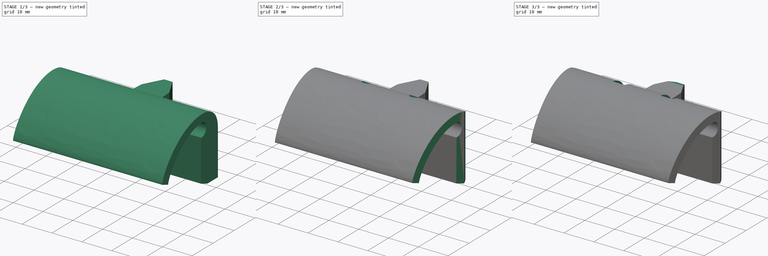
[diagram: build sequence overview — one tinted view per stage of 3, left to right]
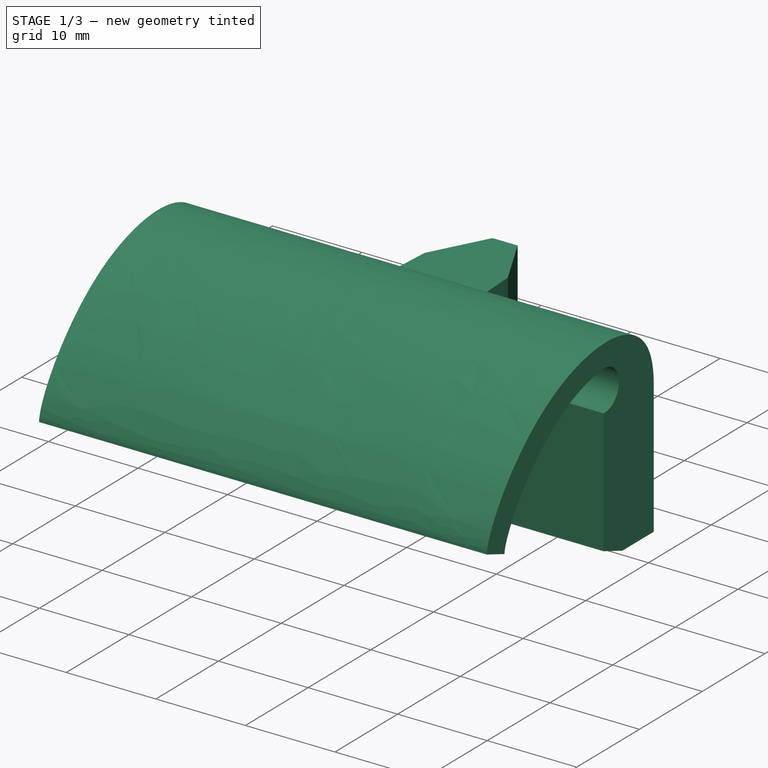
[diagram: stage 1 of 3 — iso view after this stage's code; geometry added in this stage tinted green]
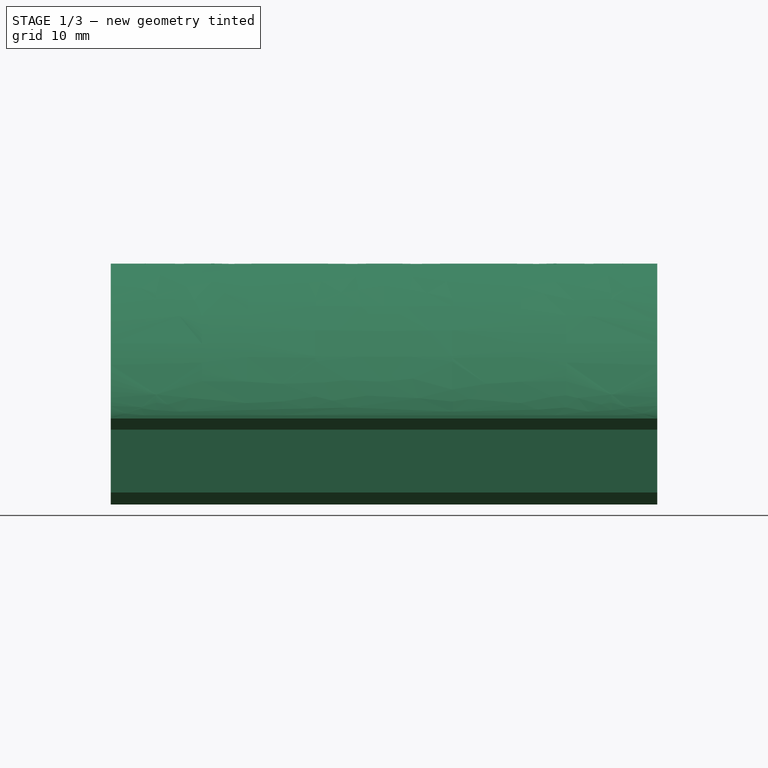
[diagram: stage 1 of 3 — front view after this stage's code; geometry added in this stage tinted green]
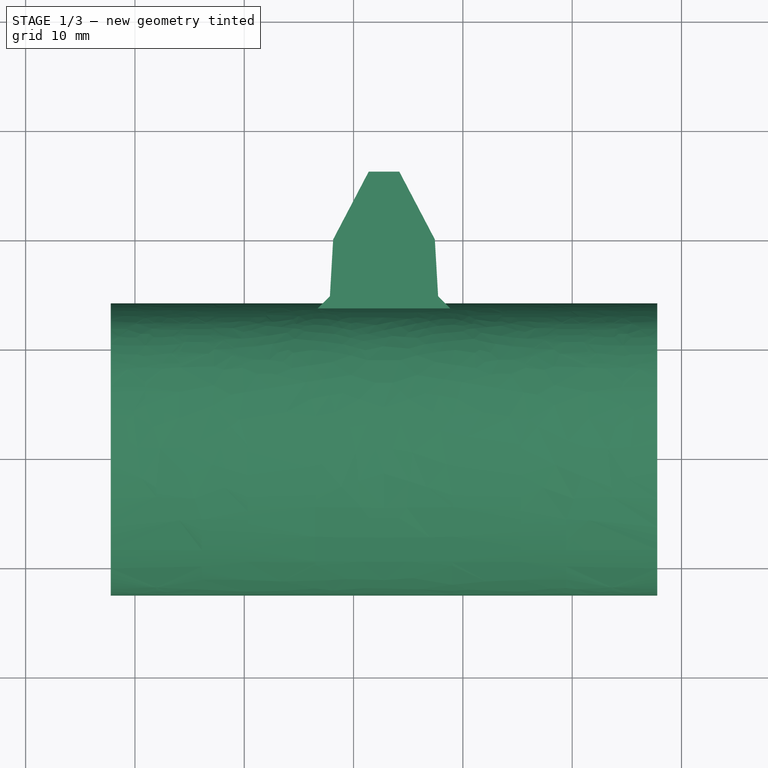
[diagram: stage 1 of 3 — top view after this stage's code; geometry added in this stage tinted green]
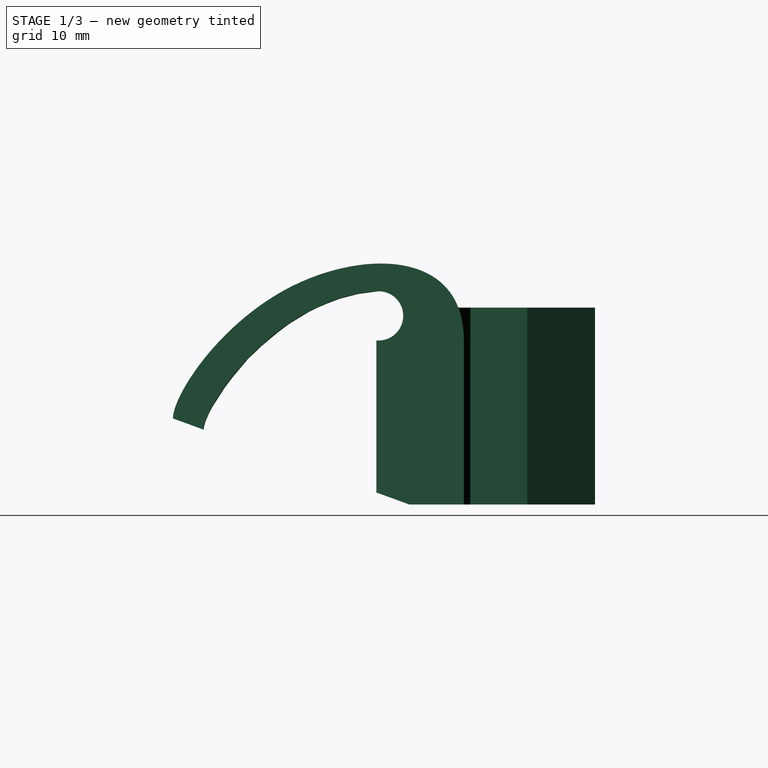
[diagram: stage 1 of 3 — right view after this stage's code; geometry added in this stage tinted green]
FCSTD DOCUMENT  (FreeCAD 0.19R)
Label: stollen_n10
License: All rights reserved
LicenseURL: http://en.wikipedia.org/wiki/All_rights_reserved
objects: Sketcher::SketchObject×5, PartDesign::Pocket×3, PartDesign::Pad×2, PartDesign::Body×1
note: 16 computed .brp shape members not serialized (recipe doc carries the construction recipe); baked Part::Feature solids carry a one-line shape summary decoded from their .brp

FEATURE [Sketcher::SketchObject] Sketch006  label="profile"
  MapMode = 5
  Placement = pos=(32.7848,3.36022e-06,0) rot=(0.57735,0.57735,0.57735;2.0944rad)
  sketch-geometry (26):
    g0: LineSegment StartX=-22.6129 StartY=7.86646 StartZ=0 EndX=-19.7939 EndY=6.8404 EndZ=0
    g1-g5: Circle [constr] x5 (B-spline internal-alignment scaffolding for g6; pole/knot coordinates omitted)
    g6: BSplineCurve PolesCount=5 KnotsCount=3 Degree=3 IsPeriodic=0
    g7: GeomPoint [constr] X=4 Y=15 Z=0
    g8: GeomPoint [constr] X=-11.6532 Y=19.9999 Z=0
    g9: GeomPoint [constr] X=-22.6129 Y=7.86646 Z=0
    g10-g13: Circle [constr] x4 (B-spline internal-alignment scaffolding for g14; pole/knot coordinates omitted)
    g14: BSplineCurve PolesCount=4 KnotsCount=2 Degree=3 IsPeriodic=0
    g15: GeomPoint [constr] X=-3.8 Y=19.5 Z=0
    g16: GeomPoint [constr] X=-19.7939 Y=6.8404 Z=0
    g17: LineSegment StartX=-3.8 StartY=15 StartZ=0 EndX=-4 EndY=15 EndZ=0
    g18: LineSegment StartX=-4 StartY=15 StartZ=0 EndX=-4 EndY=1.09191 EndZ=0
    g19: LineSegment StartX=4 StartY=0 StartZ=0 EndX=4 EndY=15 EndZ=0
    g20: ArcOfCircle CenterX=-3.8 CenterY=17.25 CenterZ=0 NormalX=0 NormalY=0 NormalZ=1 AngleXU=0 Radius=2.25 StartAngle=4.71239 EndAngle=7.85398
    g21: LineSegment StartX=4 StartY=0 StartZ=0 EndX=-1 EndY=0 EndZ=0
    g22: LineSegment StartX=-1 StartY=0 StartZ=0 EndX=-4 EndY=1.09191 EndZ=0
    g23: LineSegment [constr] StartX=-1 StartY=0 StartZ=0 EndX=-22.6129 EndY=7.86646 EndZ=0
    g24: LineSegment [constr] StartX=-22.6129 StartY=10 StartZ=0 EndX=-22.6129 EndY=7.86646 EndZ=0
    g25: LineSegment [constr] StartX=-19.7939 StartY=6.8404 StartZ=0 EndX=-19.7939 EndY=8.97394 EndZ=0
  constraints (48):
    c: Radius(g1) = 0.9
    c: Equal(g1, g2-g5) x4
    c: Coincident(g6,g0)
    c: InternalAlignment(g1-g5 -> g6) x5
    c: InternalAlignment(g7,g6)
    c: InternalAlignment(g8,g6)
    c: InternalAlignment(g9,g6)
    c: Radius(g10) = 1
    c: Equal(g10,g11)
    c: Equal(g10,g12)
    c: Equal(g10,g13)
    c: Coincident(g14,g0)
    c: InternalAlignment(g10-g13 -> g14) x4
    c: InternalAlignment(g15,g14)
    c: InternalAlignment(g16,g14)
    c: Horizontal(g17)
    c: Coincident(g17,g18)
    c: Coincident(g19,g6)
    c: Vertical(g19)
    c: Coincident(g20,g14)
    c: Coincident(g19,g21)
    c: PointOnObject(g21,g-1)
    c: Horizontal(g21)
    c: Coincident(g21,g22)
    c: Coincident(g22,g18)
    c: Coincident(g23,g21)
    c: Coincident(g23,g0)
    c: PointOnObject(g0,g23)
    c: PointOnObject(g18,g23)
    c: Angle(g23) = 2.79253
    c: DistanceX(g18,g19) = 8
    c: Angle(g20) = 3.14159
    c: Diameter(g20) = 4.5
    c: DistanceY(g19,g19) = 15
    c: Vertical(g18)
    c: DistanceX(g21,g21) = 5
    c: Distance(g23) = 23
    c: DistanceX(g17,g17) = 0.2
    c: Tangent(g20,g17) = 1.5708
    c: Symmetric(g6,g17,g-2)
    c: Distance(g0) = 3
    c: Coincident(g24,g4)
    c: Coincident(g24,g0)
    c: Vertical(g24)
    c: Coincident(g25,g0)
    c: Coincident(g25,g12)
    c: Vertical(g25)
    c: Equal(g24,g25)
FEATURE [PartDesign::Pad] Pad
  Length = 50
  Length2 = 100
  Midplane = true
  Placement = pos=(32.7848,3.36022e-06,0) rot=(0.57735,0.57735,0.57735;2.0944rad)
  Profile = -> Sketch006
  Reversed = true
  Type = 0
FEATURE [Sketcher::SketchObject] Sketch008  label="nose"
  ExternalGeometry = -> [Pad]
  MapMode = 5
  Placement = pos=(32.7848,3.36022e-06,0) rot=(0.707107,0.707107,0;3.14159rad)
  Support = -> [Pad]
  sketch-geometry (8):
    g0: LineSegment StartX=3.05 StartY=6.5 StartZ=0 EndX=3.05 EndY=-6.5 EndZ=0
    g1: LineSegment StartX=3.05 StartY=-6.5 StartZ=0 EndX=4.6 EndY=-4.95 EndZ=0
    g2: LineSegment StartX=4.6 StartY=-4.95 StartZ=0 EndX=9.8 EndY=-4.65 EndZ=0
    g3: LineSegment StartX=9.8 StartY=-4.65 StartZ=0 EndX=16 EndY=-1.4 EndZ=0
    g4: LineSegment StartX=16 StartY=-1.4 StartZ=0 EndX=16 EndY=1.4 EndZ=0
    g5: LineSegment StartX=16 StartY=1.4 StartZ=0 EndX=9.8 EndY=4.65 EndZ=0
    g6: LineSegment StartX=9.8 StartY=4.65 StartZ=0 EndX=4.6 EndY=4.95 EndZ=0
    g7: LineSegment StartX=4.6 StartY=4.95 StartZ=0 EndX=3.05 EndY=6.5 EndZ=0
  constraints (20):
    c: Coincident(g0,g1)
    c: Coincident(g1,g2)
    c: Coincident(g2,g3)
    c: Coincident(g3,g4)
    c: Coincident(g4,g5)
    c: Coincident(g5,g6)
    c: Coincident(g6,g7)
    c: Coincident(g7,g0)
    c: DistanceY(g0,g0) = 13
    c: DistanceY(g1,g6) = 9.9
    c: DistanceY(g2,g5) = 9.3
    c: DistanceY(g4,g4) = 2.8
    c: DistanceX(g0,g1) = 1.55
    c: DistanceX(g1,g2) = 5.2
    c: DistanceX(g2,g3) = 6.2
    c: Symmetric(g0,g0,g-1)
    c: Symmetric(g6,g1,g-1)
    c: Symmetric(g2,g5,g-1)
    c: Symmetric(g3,g4,g-1)
    c: DistanceX(g-3,g1) = 0.6
FEATURE [PartDesign::Pad] Pad001
  BaseFeature = -> Pad
  Length = 18
  Length2 = 100
  Placement = pos=(32.7848,3.36022e-06,0) rot=(0.57735,0.57735,0.57735;2.0944rad)
  Profile = -> Sketch008
  Reversed = true
  Type = 0
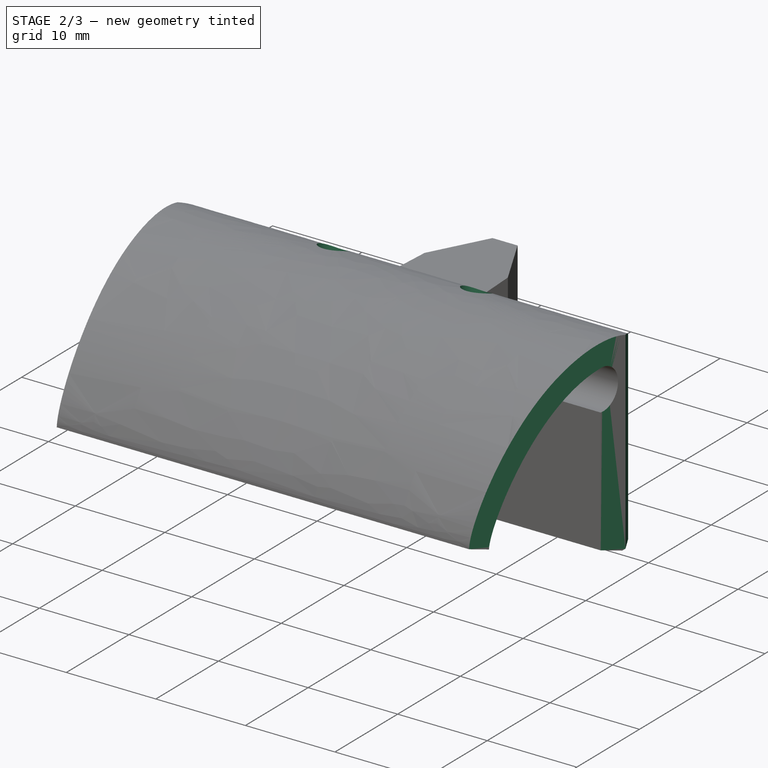
[diagram: stage 2 of 3 — iso view after this stage's code; geometry added in this stage tinted green]
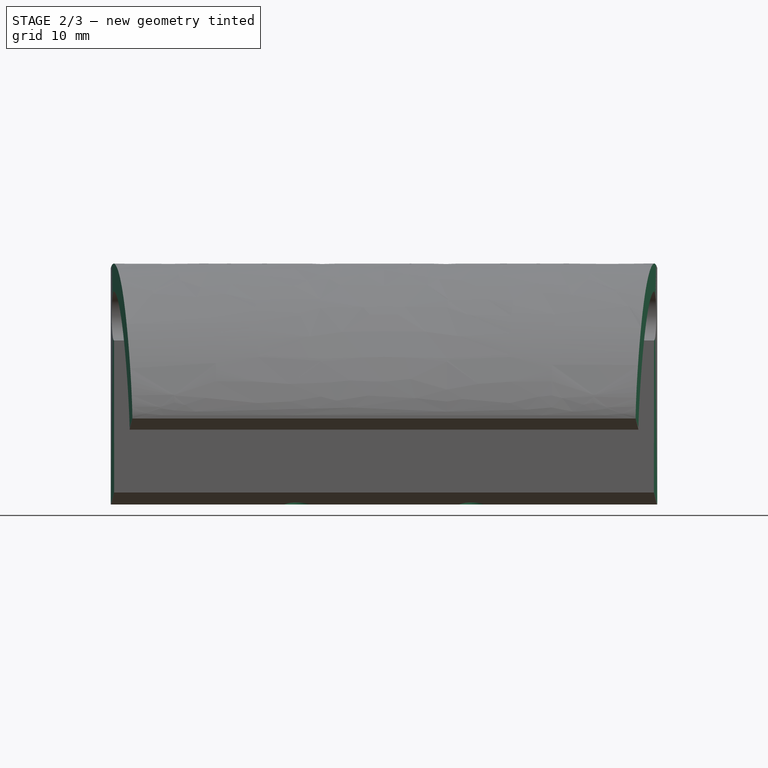
[diagram: stage 2 of 3 — front view after this stage's code; geometry added in this stage tinted green]
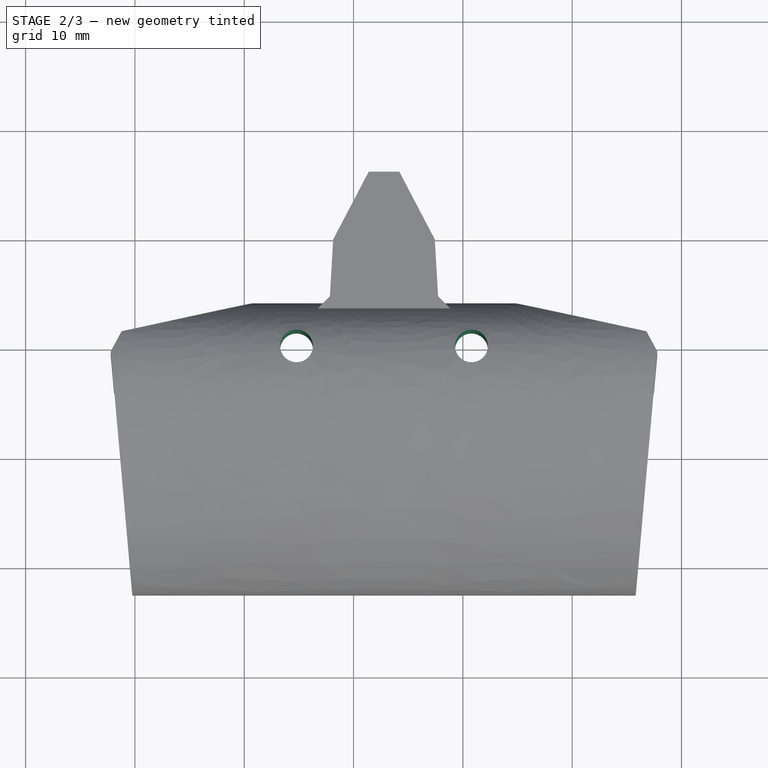
[diagram: stage 2 of 3 — top view after this stage's code; geometry added in this stage tinted green]
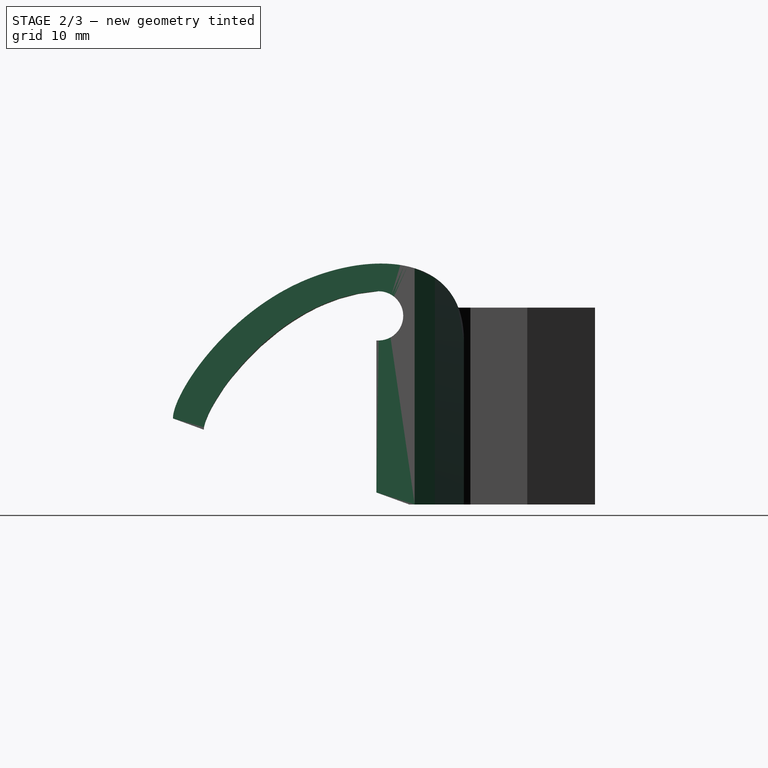
[diagram: stage 2 of 3 — right view after this stage's code; geometry added in this stage tinted green]
FEATURE [Sketcher::SketchObject] Sketch009  label="holes and top contour"
  ExternalGeometry = -> [Pad001]
  MapMode = 5
  Placement = pos=(32.7848,3.36022e-06,5.6e-15) rot=(0.707107,0.707107,0;3.14159rad)
  Support = -> [Pad001]
  sketch-geometry (14):
    g0: Circle CenterX=0 CenterY=-8 CenterZ=0 NormalX=0 NormalY=0 NormalZ=1 AngleXU=0 Radius=1.5
    g1: Circle CenterX=0 CenterY=8 CenterZ=0 NormalX=0 NormalY=0 NormalZ=1 AngleXU=0 Radius=1.5
    g2: LineSegment StartX=-34 StartY=-26 StartZ=0 EndX=4 EndY=-26 EndZ=0
    g3: LineSegment StartX=4 StartY=-26 StartZ=0 EndX=4 EndY=-12 EndZ=0
    g4: LineSegment StartX=-34 StartY=26 StartZ=0 EndX=4 EndY=26 EndZ=0
    g5: LineSegment StartX=4 StartY=26 StartZ=0 EndX=4 EndY=12 EndZ=0
    g6: LineSegment StartX=4 StartY=-12 StartZ=0 EndX=1.35 EndY=-24 EndZ=0
    g7: LineSegment StartX=1.35 StartY=24 StartZ=0 EndX=4 EndY=12 EndZ=0
    g8: LineSegment StartX=1.35 StartY=-24 StartZ=0 EndX=-0.5 EndY=-25 EndZ=0
    g9: LineSegment StartX=-0.5 StartY=-25 StartZ=0 EndX=-34 EndY=-22 EndZ=0
    g10: LineSegment StartX=-34 StartY=-22 StartZ=0 EndX=-34 EndY=-26 EndZ=0
    g11: LineSegment StartX=-34 StartY=26 StartZ=0 EndX=-34 EndY=22 EndZ=0
    g12: LineSegment StartX=-34 StartY=22 StartZ=0 EndX=-0.5 EndY=25 EndZ=0
    g13: LineSegment StartX=-0.5 StartY=25 StartZ=0 EndX=1.35 EndY=24 EndZ=0
  constraints (35):
    c: Diameter(g0) = 3
    c: Equal(g0,g1) = 3
    c: Symmetric(g1,g0,g-1)
    c: DistanceY(g0,g1) = 16
    c: Horizontal(g2)
    c: Coincident(g2,g3)
    c: Vertical(g3)
    c: Coincident(g4,g5)
    c: Vertical(g5)
    c: Horizontal(g4)
    c: Symmetric(g5,g3,g-1)
    c: Symmetric(g2,g4,g-1)
    c: DistanceY(g3) = -12
    c: DistanceY(g2) = -26
    c: Coincident(g3,g6)
    c: Coincident(g7,g5)
    c: Symmetric(g7,g6,g-1)
    c: DistanceY(g6) = -24
    c: Coincident(g6,g8)
    c: Coincident(g8,g9)
    c: Coincident(g9,g10)
    c: Vertical(g10)
    c: Coincident(g2,g10)
    c: DistanceY(g8) = -25
    c: Coincident(g4,g11)
    c: Coincident(g11,g12)
    c: Coincident(g12,g13)
    c: Coincident(g13,g7)
    c: Symmetric(g8,g12,g-1)
    c: Symmetric(g9,g11,g-1)
    c: DistanceY(g9,g11) = 44
    c: DistanceX(g6,g2) = 2.65
    c: DistanceX(g8,g2) = 4.5
    c: PointOnObject(g3,g-3)
    c: PointOnObject(g0,g-2)
FEATURE [PartDesign::Pocket] Pocket
  BaseFeature = -> Pad001
  Length = 5
  Length2 = 100
  Placement = pos=(32.7848,3.36022e-06,0) rot=(0.57735,0.57735,0.57735;2.0944rad)
  Profile = -> Sketch009
  Type = 1
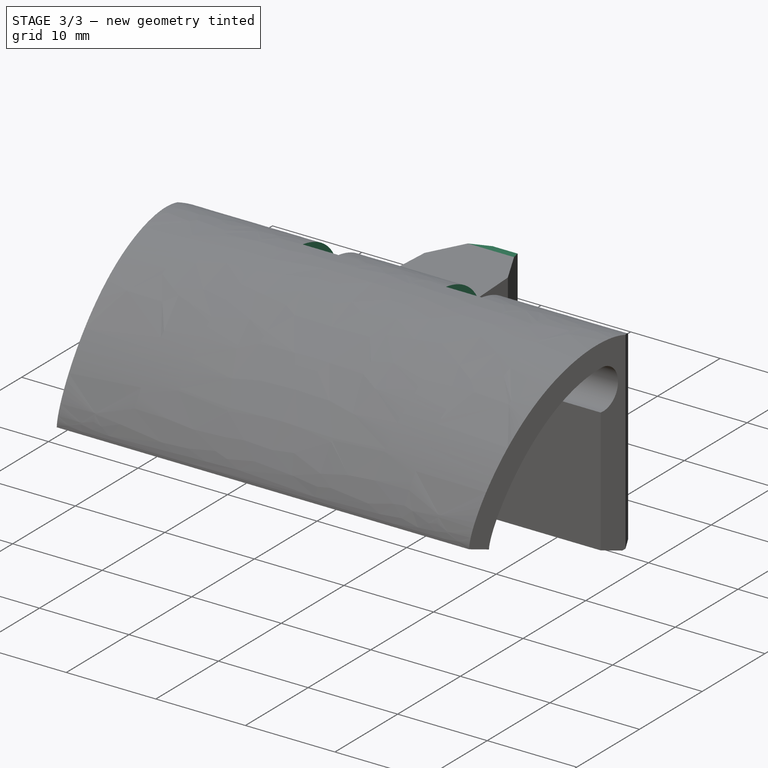
[diagram: stage 3 of 3 — iso view after this stage's code; geometry added in this stage tinted green]
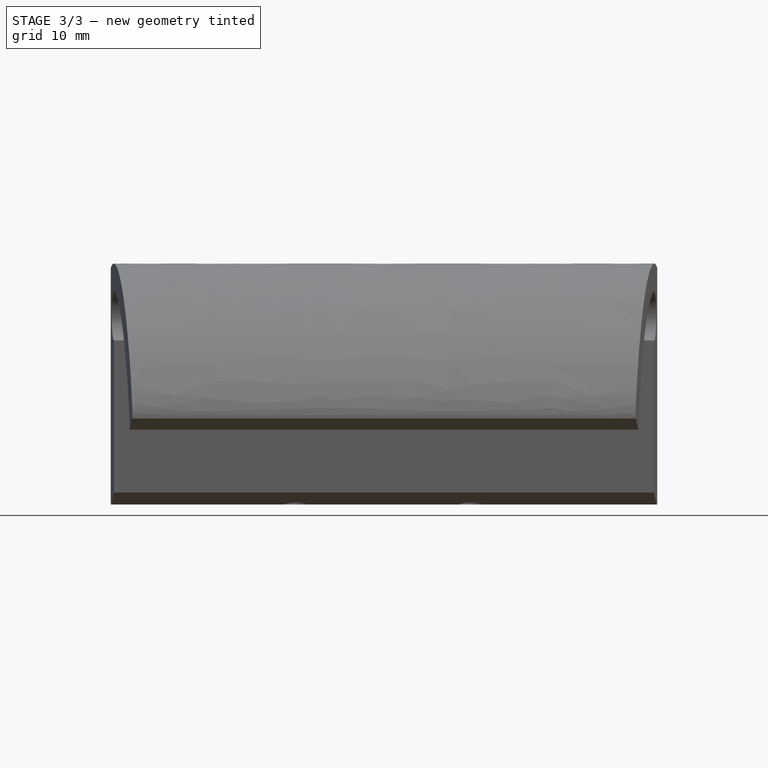
[diagram: stage 3 of 3 — front view after this stage's code; geometry added in this stage tinted green]
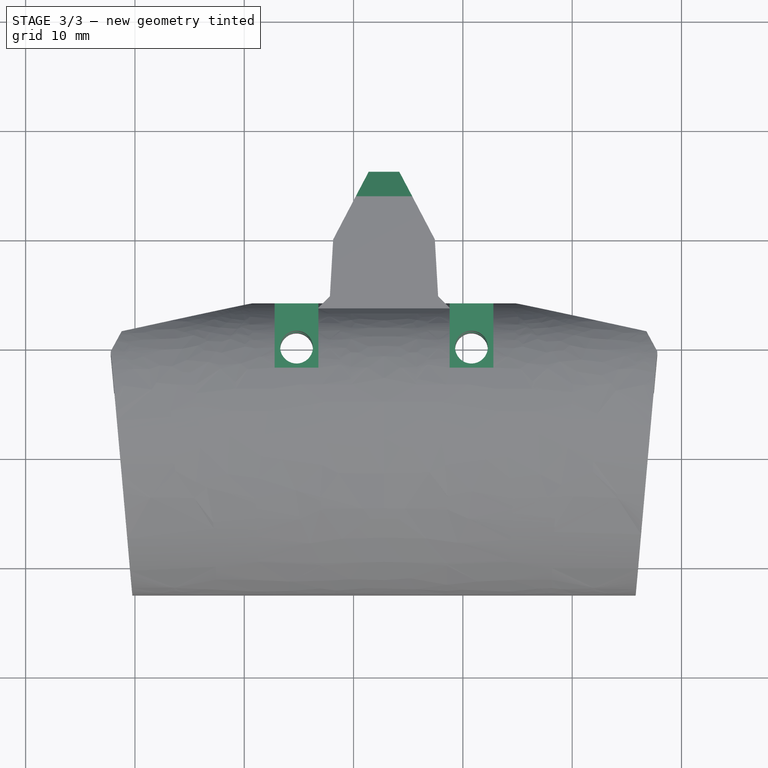
[diagram: stage 3 of 3 — top view after this stage's code; geometry added in this stage tinted green]
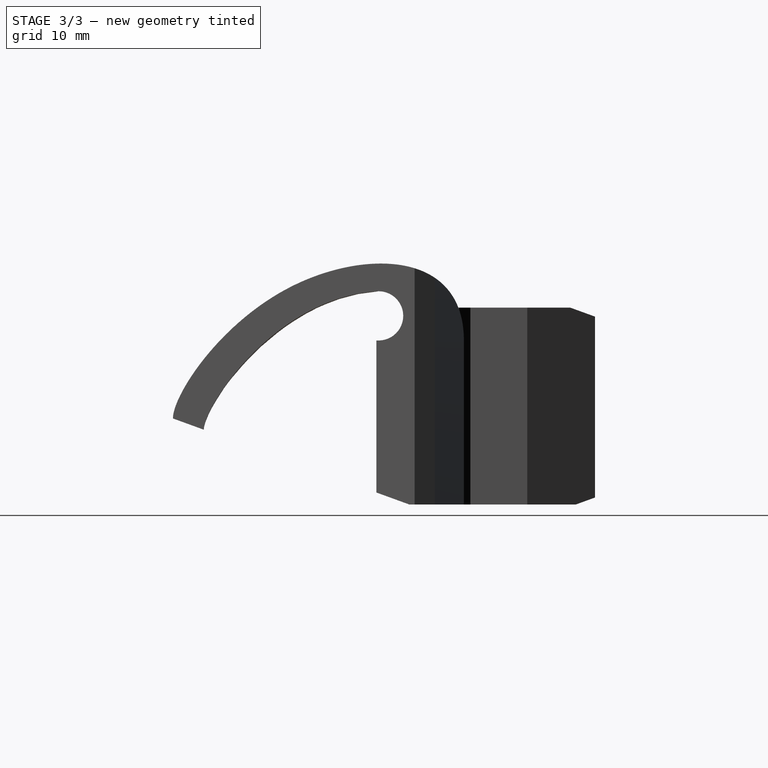
[diagram: stage 3 of 3 — right view after this stage's code; geometry added in this stage tinted green]
FEATURE [Sketcher::SketchObject] Sketch010  label="top openings"
  MapMode = 5
  Placement = pos=(32.7848,4,-2.2e-15) rot=(-0.57735,-0.57735,-0.57735;2.0944rad)
  Support = -> [Pocket]
  sketch-geometry (16):
    g0: LineSegment StartX=5.5 StartY=10 StartZ=0 EndX=9.5 EndY=10 EndZ=0
    g1: LineSegment StartX=9.5 StartY=10 StartZ=0 EndX=9.5 EndY=6 EndZ=0
    g2: LineSegment StartX=9.5 StartY=6 StartZ=0 EndX=5.5 EndY=6 EndZ=0
    g3: LineSegment StartX=5.5 StartY=6 StartZ=0 EndX=5.5 EndY=10 EndZ=0
    g4: LineSegment StartX=5.5 StartY=-6 StartZ=0 EndX=9.5 EndY=-6 EndZ=0
    g5: LineSegment StartX=9.5 StartY=-6 StartZ=0 EndX=9.5 EndY=-10 EndZ=0
    g6: LineSegment StartX=9.5 StartY=-10 StartZ=0 EndX=5.5 EndY=-10 EndZ=0
    g7: LineSegment StartX=5.5 StartY=-10 StartZ=0 EndX=5.5 EndY=-6 EndZ=0
    g8: LineSegment StartX=15 StartY=10 StartZ=0 EndX=25 EndY=10 EndZ=0
    g9: LineSegment StartX=25 StartY=10 StartZ=0 EndX=25 EndY=6 EndZ=0
    g10: LineSegment StartX=25 StartY=6 StartZ=0 EndX=15 EndY=6 EndZ=0
    g11: LineSegment StartX=15 StartY=6 StartZ=0 EndX=15 EndY=10 EndZ=0
    g12: LineSegment StartX=15 StartY=-6 StartZ=0 EndX=25 EndY=-6 EndZ=0
    g13: LineSegment StartX=25 StartY=-6 StartZ=0 EndX=25 EndY=-10 EndZ=0
    g14: LineSegment StartX=25 StartY=-10 StartZ=0 EndX=15 EndY=-10 EndZ=0
    g15: LineSegment StartX=15 StartY=-10 StartZ=0 EndX=15 EndY=-6 EndZ=0
  constraints (45):
    c: Coincident(g0,g1)
    c: Coincident(g1,g2)
    c: Coincident(g2,g3)
    c: Coincident(g3,g0)
    c: Horizontal(g0)
    c: Horizontal(g2)
    c: Vertical(g1)
    c: Vertical(g3)
    c: Coincident(g4,g5)
    c: Coincident(g5,g6)
    c: Coincident(g6,g7)
    c: Coincident(g7,g4)
    c: Horizontal(g4)
    c: Horizontal(g6)
    c: Vertical(g5)
    c: Vertical(g7)
    c: Equal(g6,g5)
    c: Equal(g5,g2)
    c: Equal(g2,g1)
    c: DistanceY(g1,g1) = 4
    c: Symmetric(g4,g1,g-1)
    c: DistanceY(g6,g2) = 16
    c: DistanceX(g0) = 5.5
    c: Coincident(g8,g9)
    c: Coincident(g9,g10)
    c: Coincident(g10,g11)
    c: Coincident(g11,g8)
    c: Horizontal(g8)
    c: Horizontal(g10)
    c: Vertical(g9)
    c: Vertical(g11)
    c: Coincident(g12,g13)
    c: Coincident(g13,g14)
    c: Coincident(g14,g15)
    c: Coincident(g15,g12)
    c: Horizontal(g12)
    c: Horizontal(g14)
    c: Vertical(g13)
    c: Vertical(g15)
    c: Equal(g1,g11)
    c: Equal(g11,g15)
    c: PointOnObject(g12,g4)
    c: PointOnObject(g8,g0)
    c: Equal(g8,g12)
    c: DistanceX(g8,g8) = 10
FEATURE [PartDesign::Pocket] Pocket001
  BaseFeature = -> Pocket
  Length = 6
  Length2 = 100
  Placement = pos=(32.7848,3.36022e-06,0) rot=(0.57735,0.57735,0.57735;2.0944rad)
  Profile = -> Sketch010
  Type = 0
FEATURE [Sketcher::SketchObject] Sketch
  MapMode = 5
  Placement = pos=(0,0,0) rot=(0.57735,0.57735,0.57735;2.0944rad)
  Support = -> [YZ_Plane]
  sketch-geometry (6):
    g0: LineSegment StartX=11 StartY=19 StartZ=0 EndX=16.9409 EndY=19 EndZ=0
    g1: LineSegment StartX=16.9409 StartY=19 StartZ=0 EndX=16.9409 EndY=16.8377 EndZ=0
    g2: LineSegment StartX=16.9409 StartY=16.8377 StartZ=0 EndX=11 EndY=19 EndZ=0
    g3: LineSegment StartX=12.7341 StartY=-0.552658 StartZ=0 EndX=17 EndY=-0.552658 EndZ=0
    g4: LineSegment StartX=17 StartY=-0.552658 StartZ=0 EndX=17 EndY=1 EndZ=0
    g5: LineSegment StartX=17 StartY=1 StartZ=0 EndX=12.7341 EndY=-0.552658 EndZ=0
  constraints (12):
    c: Horizontal(g0)
    c: Coincident(g0,g1)
    c: Vertical(g1)
    c: Coincident(g1,g2)
    c: Coincident(g2,g0)
    c: Horizontal(g3)
    c: Coincident(g3,g4)
    c: Vertical(g4)
    c: Coincident(g4,g5)
    c: Coincident(g5,g3)
    c: Angle(g5) = -2.79253
    c: Angle(g2) = 2.79253
FEATURE [PartDesign::Pocket] Pocket002
  BaseFeature = -> Pocket001
  Length = 5
  Length2 = 100
  Midplane = true
  Placement = pos=(32.7848,3.36022e-06,0) rot=(0.57735,0.57735,0.57735;2.0944rad)
  Profile = -> Sketch
  Type = 1
FEATURE [PartDesign::Body] Body
  Group = -> [Sketch006,Pad,Sketch008,Sketch009,Sketch010,Pad001,Pocket,Pocket001,Sketch,Pocket002]
  Origin = -> Origin
  Tip = -> Pocket002
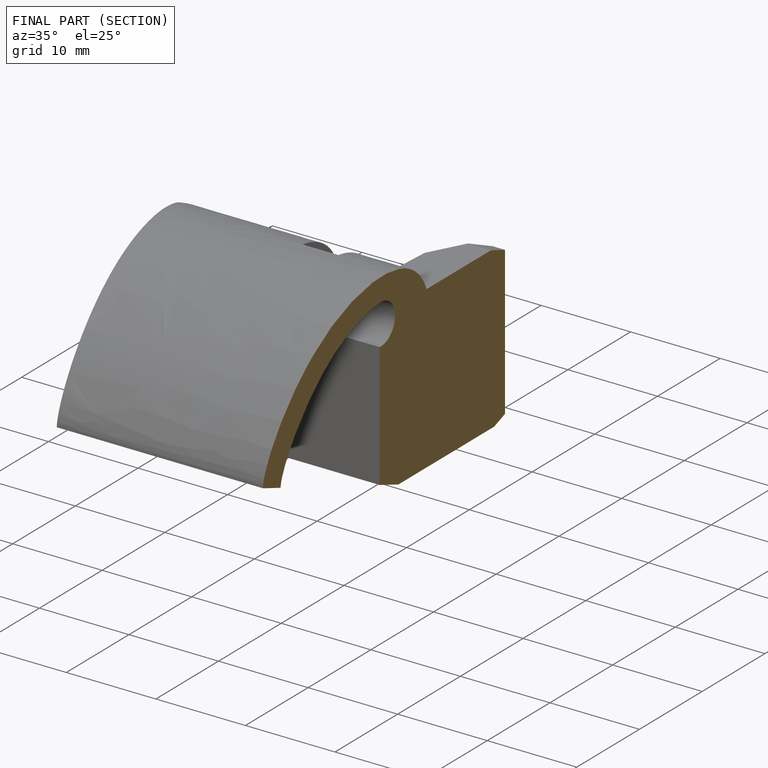
[diagram: finished part — half-section view (interior)]
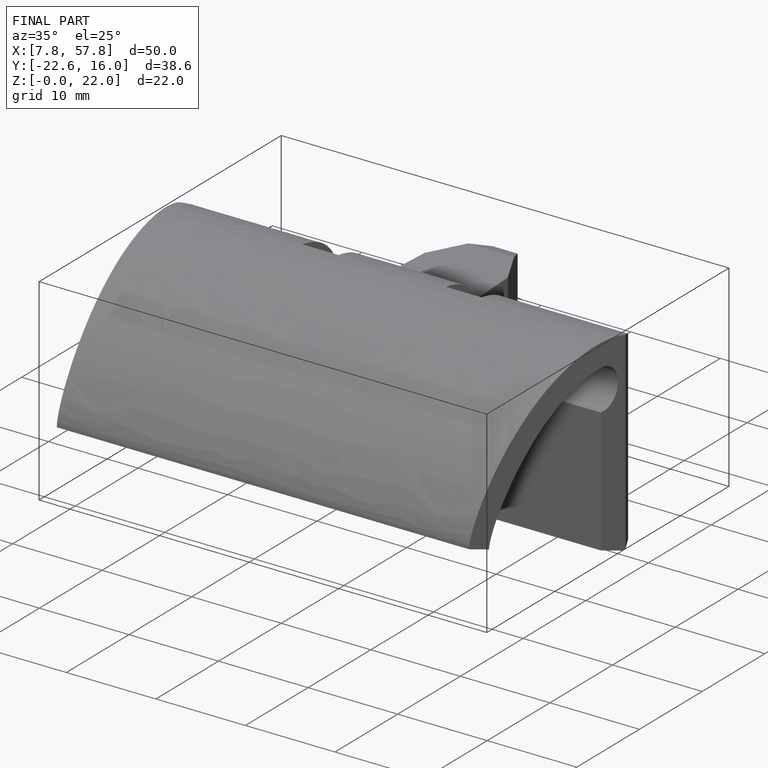
[diagram: finished part — iso view with bounding-box wireframe]
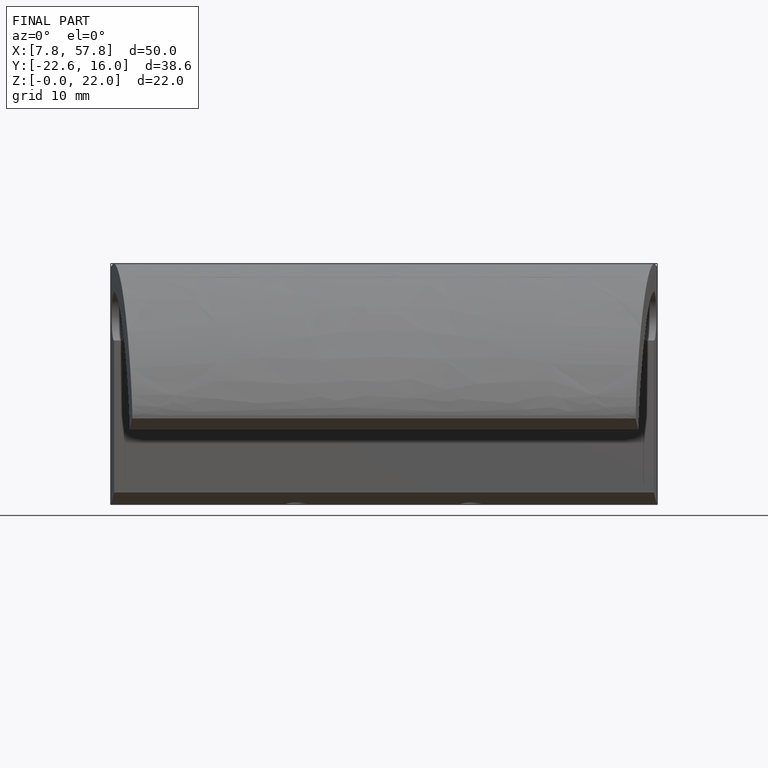
[diagram: finished part — front view with bounding-box wireframe]
